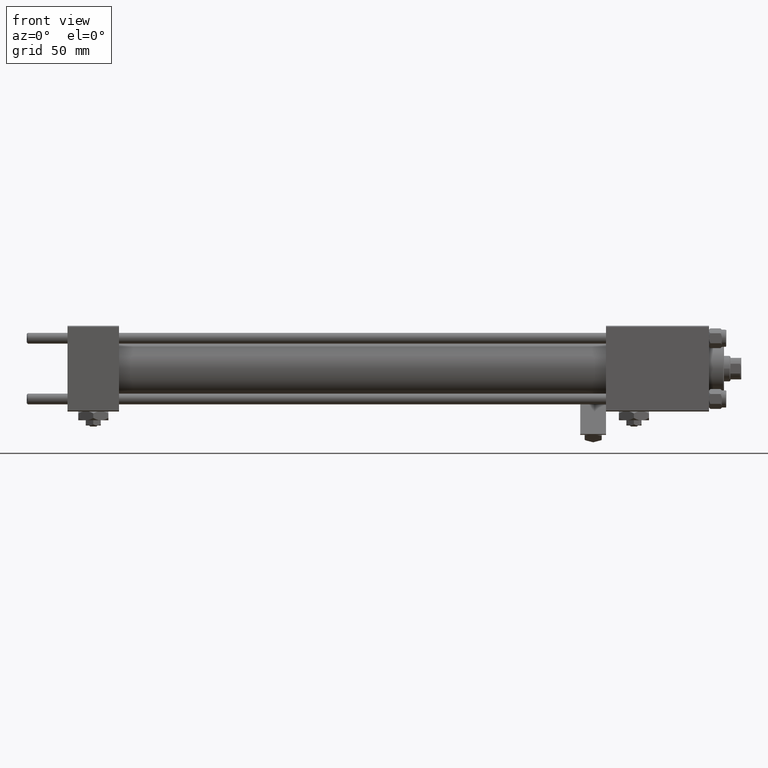
[diagram: clean part render]
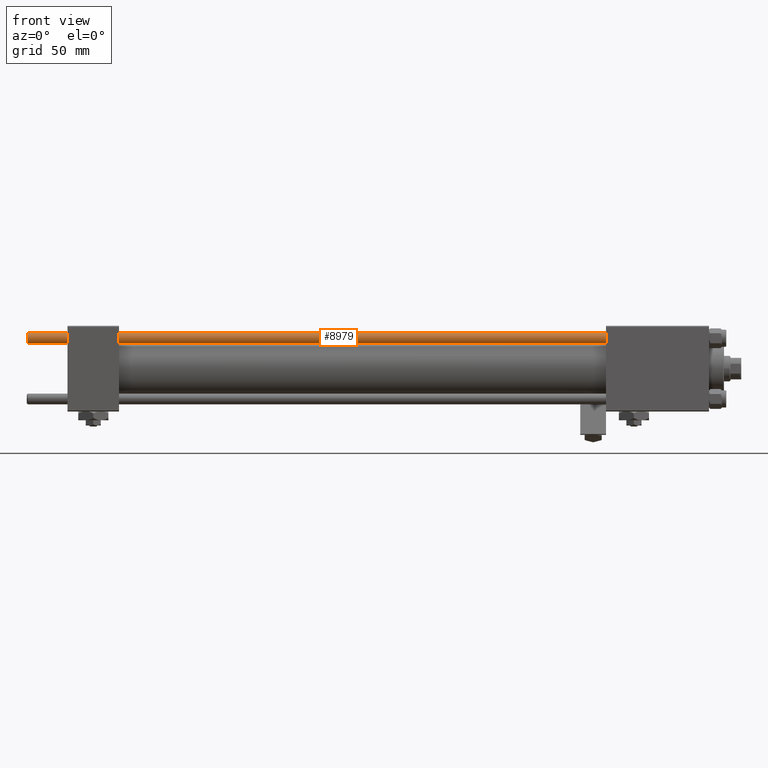
[diagram: same view with one face highlighted and labeled with its STEP entity id]
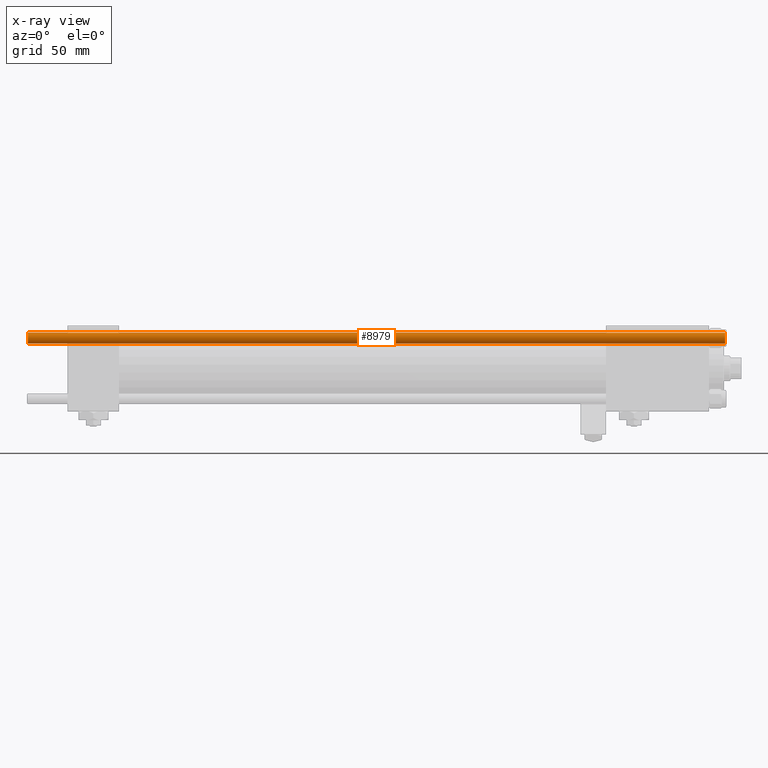
[diagram: x-ray of the same camera — body ghosted, the highlighted face saturated]
A machine part, front view. The second image highlights one B-rep face of the part: STEP entity #8979.
The next image is the same camera in x-ray: the body ghosted, the highlighted face saturated — about 0% of this face is hidden behind the body in this view.
In plain terms, the highlighted cylindrical surface (edge-blend (fillet) strip) has radius 2.5 mm, axis along (1, -0, 0).
Its self-contained STEP definition (entity closure, byte-faithful):
#1852 = EDGE_CURVE ( 'NONE', #48198, #29187, #5097, .T. ) ;
#2416 = DIRECTION ( 'NONE',  ( -0.000000000000000000, -0.000000000000000000, 1.000000000000000000 ) ) ;
#4828 = EDGE_LOOP ( 'NONE', ( #16886, #25578, #29317, #5146 ) ) ;
#5097 = LINE ( 'NONE', #37940, #44083 ) ;
#5146 = ORIENTED_EDGE ( 'NONE', *, *, #1852, .F. ) ;
#5625 = DIRECTION ( 'NONE',  ( -0.000000000000000000, -0.000000000000000000, -1.000000000000000000 ) ) ;
#6379 = LINE ( 'NONE', #34965, #42018 ) ;
#7096 = CIRCLE ( 'NONE', #8803, 2.500000000000000000 ) ;
#8803 = AXIS2_PLACEMENT_3D ( 'NONE', #31004, #2416, #51296 ) ;
#8979 = ADVANCED_FACE ( 'NONE', ( #17707 ), #16911, .T. ) ;
#9107 = CARTESIAN_POINT ( 'NONE',  ( 2.500000000000000000, 3.061616997868383141E-16, 325.5000000000000000 ) ) ;
#16886 = ORIENTED_EDGE ( 'NONE', *, *, #50492, .T. ) ;
#16911 = CYLINDRICAL_SURFACE ( 'NONE', #39265, 2.500000000000000000 ) ;
#17395 = CIRCLE ( 'NONE', #31062, 2.500000000000000000 ) ;
#17707 = FACE_OUTER_BOUND ( 'NONE', #4828, .T. ) ;
#19733 = CARTESIAN_POINT ( 'NONE',  ( -2.500000000000000000, 0.000000000000000000, 0.4999999999999449329 ) ) ;
#22944 = DIRECTION ( 'NONE',  ( -0.000000000000000000, -0.000000000000000000, -1.000000000000000000 ) ) ;
#23891 = CARTESIAN_POINT ( 'NONE',  ( 2.500000000000000000, 3.061616997868383141E-16, 0.4999999999999449329 ) ) ;
#25578 = ORIENTED_EDGE ( 'NONE', *, *, #31060, .T. ) ;
#28194 = CARTESIAN_POINT ( 'NONE',  ( -2.500000000000000000, 0.000000000000000000, 325.5000000000000000 ) ) ;
#29187 = VERTEX_POINT ( 'NONE', #19733 ) ;
#29198 = DIRECTION ( 'NONE',  ( -0.000000000000000000, -0.000000000000000000, -1.000000000000000000 ) ) ;
#29317 = ORIENTED_EDGE ( 'NONE', *, *, #36873, .T. ) ;
#29912 = DIRECTION ( 'NONE',  ( 1.000000000000000000, 0.000000000000000000, 0.000000000000000000 ) ) ;
#30638 = VERTEX_POINT ( 'NONE', #23891 ) ;
#31004 = CARTESIAN_POINT ( 'NONE',  ( 0.000000000000000000, 0.000000000000000000, 0.4999999999999449329 ) ) ;
#31060 = EDGE_CURVE ( 'NONE', #45182, #30638, #6379, .T. ) ;
#31062 = AXIS2_PLACEMENT_3D ( 'NONE', #49412, #37659, #29912 ) ;
#34965 = CARTESIAN_POINT ( 'NONE',  ( 2.500000000000000000, 3.061616997868383141E-16, 326.0000000000000000 ) ) ;
#36873 = EDGE_CURVE ( 'NONE', #30638, #29187, #7096, .T. ) ;
#37659 = DIRECTION ( 'NONE',  ( 0.000000000000000000, 0.000000000000000000, -1.000000000000000000 ) ) ;
#37940 = CARTESIAN_POINT ( 'NONE',  ( -2.500000000000000000, 0.000000000000000000, 326.0000000000000000 ) ) ;
#39265 = AXIS2_PLACEMENT_3D ( 'NONE', #41223, #29198, #49769 ) ;
#41223 = CARTESIAN_POINT ( 'NONE',  ( 0.000000000000000000, 0.000000000000000000, 326.0000000000000000 ) ) ;
#42018 = VECTOR ( 'NONE', #22944, 1000.000000000000000 ) ;
#44083 = VECTOR ( 'NONE', #5625, 1000.000000000000000 ) ;
#45182 = VERTEX_POINT ( 'NONE', #9107 ) ;
#48198 = VERTEX_POINT ( 'NONE', #28194 ) ;
#49412 = CARTESIAN_POINT ( 'NONE',  ( 0.000000000000000000, 0.000000000000000000, 325.5000000000000000 ) ) ;
#49769 = DIRECTION ( 'NONE',  ( -1.000000000000000000, 0.000000000000000000, 0.000000000000000000 ) ) ;
#50492 = EDGE_CURVE ( 'NONE', #48198, #45182, #17395, .T. ) ;
#51296 = DIRECTION ( 'NONE',  ( 1.000000000000000000, 0.000000000000000000, 0.000000000000000000 ) ) ;